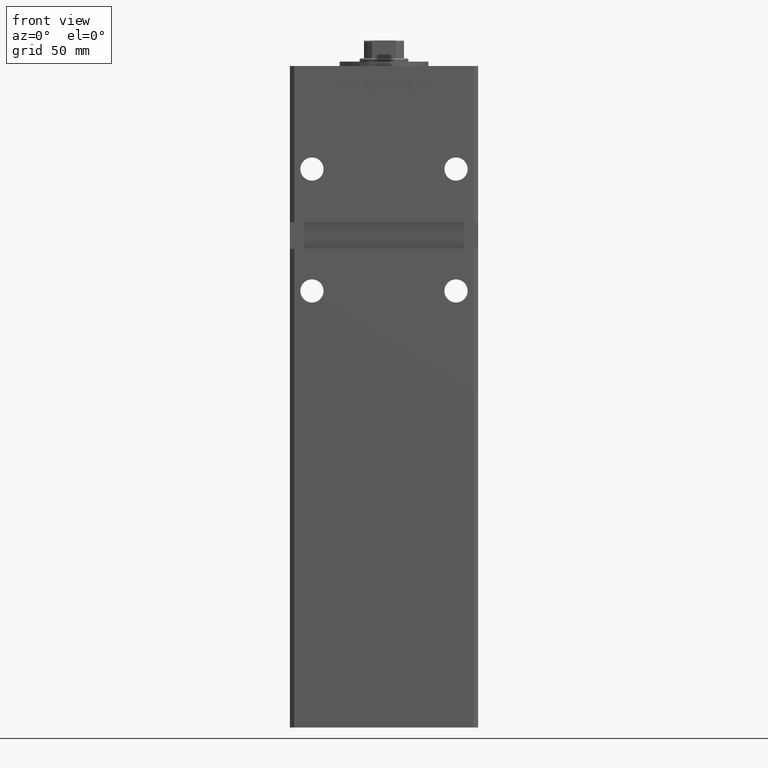
[diagram: clean part render]
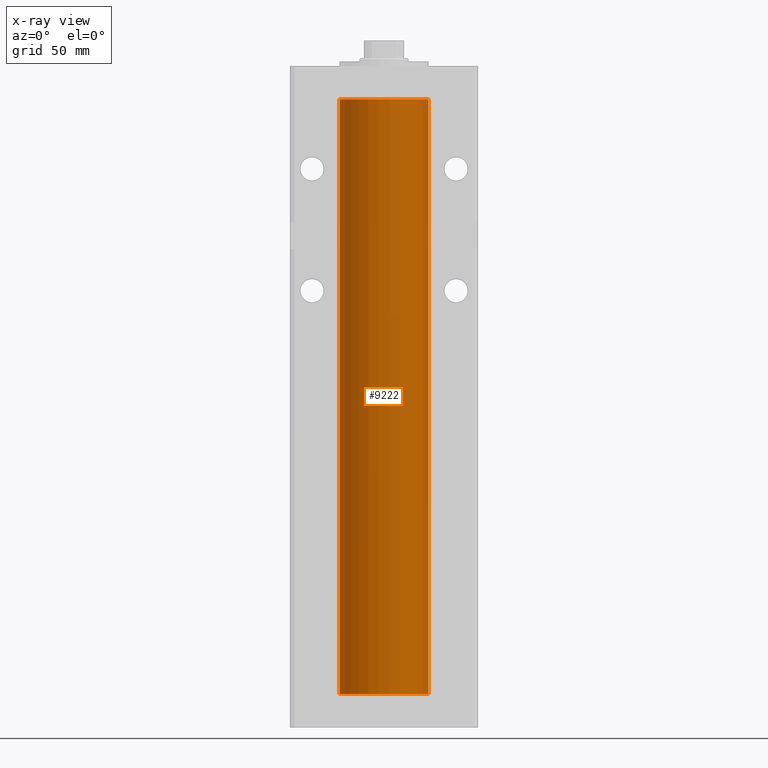
[diagram: x-ray — body ghosted, one internal face saturated and labeled with its STEP entity id]
A machine part, front view, then the same camera in x-ray: the body is ghosted and one INTERNAL B-rep face — a face not visible from any outside direction — is saturated and labeled: STEP entity #9222.
In plain terms, the highlighted cylindrical surface (partial cylindrical patch) has radius 20 mm, axis along (-0, -0, -1).
Its self-contained STEP definition (entity closure, byte-faithful):
#299 = ORIENTED_EDGE ( 'NONE', *, *, #31716, .T. ) ;
#1070 = VECTOR ( 'NONE', #48158, 1000.000000000000000 ) ;
#2253 = ORIENTED_EDGE ( 'NONE', *, *, #45475, .F. ) ;
#2367 = EDGE_CURVE ( 'NONE', #52980, #5954, #19341, .T. ) ;
#3259 = CARTESIAN_POINT ( 'NONE',  ( 20.00000000000000000, 2.449293598294706513E-15, 268.5000000000000000 ) ) ;
#5217 = DIRECTION ( 'NONE',  ( -0.000000000000000000, 0.000000000000000000, 1.000000000000000000 ) ) ;
#5954 = VERTEX_POINT ( 'NONE', #29439 ) ;
#7792 = CARTESIAN_POINT ( 'NONE',  ( 0.000000000000000000, 0.000000000000000000, 268.5000000000000000 ) ) ;
#9222 = ADVANCED_FACE ( 'NONE', ( #24996 ), #44625, .F. ) ;
#11039 = LINE ( 'NONE', #3259, #1070 ) ;
#11917 = CARTESIAN_POINT ( 'NONE',  ( -20.00000000000000000, 0.000000000000000000, 268.5000000000000000 ) ) ;
#12096 = CARTESIAN_POINT ( 'NONE',  ( 20.00000000000000000, 2.449293598294706513E-15, 268.5000000000000000 ) ) ;
#19341 = LINE ( 'NONE', #47314, #45217 ) ;
#22169 = DIRECTION ( 'NONE',  ( 1.000000000000000000, 0.000000000000000000, 0.000000000000000000 ) ) ;
#22480 = EDGE_CURVE ( 'NONE', #31709, #28141, #11039, .T. ) ;
#23423 = DIRECTION ( 'NONE',  ( -0.000000000000000000, 0.000000000000000000, 1.000000000000000000 ) ) ;
#24996 = FACE_OUTER_BOUND ( 'NONE', #42141, .T. ) ;
#25403 = CARTESIAN_POINT ( 'NONE',  ( 0.000000000000000000, 0.000000000000000000, 0.000000000000000000 ) ) ;
#28141 = VERTEX_POINT ( 'NONE', #51532 ) ;
#29439 = CARTESIAN_POINT ( 'NONE',  ( -20.00000000000000000, 0.000000000000000000, 0.000000000000000000 ) ) ;
#31709 = VERTEX_POINT ( 'NONE', #12096 ) ;
#31716 = EDGE_CURVE ( 'NONE', #52980, #31709, #44110, .T. ) ;
#34225 = AXIS2_PLACEMENT_3D ( 'NONE', #25403, #5217, #22169 ) ;
#34375 = DIRECTION ( 'NONE',  ( -1.000000000000000000, 0.000000000000000000, 0.000000000000000000 ) ) ;
#34395 = ORIENTED_EDGE ( 'NONE', *, *, #2367, .F. ) ;
#41014 = ORIENTED_EDGE ( 'NONE', *, *, #22480, .T. ) ;
#41529 = AXIS2_PLACEMENT_3D ( 'NONE', #48947, #23423, #48680 ) ;
#41906 = DIRECTION ( 'NONE',  ( -0.000000000000000000, -0.000000000000000000, -1.000000000000000000 ) ) ;
#42141 = EDGE_LOOP ( 'NONE', ( #299, #41014, #2253, #34395 ) ) ;
#44110 = CIRCLE ( 'NONE', #41529, 20.00000000000000000 ) ;
#44625 = CYLINDRICAL_SURFACE ( 'NONE', #45501, 20.00000000000000000 ) ;
#45217 = VECTOR ( 'NONE', #51881, 1000.000000000000000 ) ;
#45475 = EDGE_CURVE ( 'NONE', #5954, #28141, #53102, .T. ) ;
#45501 = AXIS2_PLACEMENT_3D ( 'NONE', #7792, #41906, #34375 ) ;
#47314 = CARTESIAN_POINT ( 'NONE',  ( -20.00000000000000000, 0.000000000000000000, 268.5000000000000000 ) ) ;
#48158 = DIRECTION ( 'NONE',  ( -0.000000000000000000, -0.000000000000000000, -1.000000000000000000 ) ) ;
#48680 = DIRECTION ( 'NONE',  ( 1.000000000000000000, 0.000000000000000000, 0.000000000000000000 ) ) ;
#48947 = CARTESIAN_POINT ( 'NONE',  ( 0.000000000000000000, 0.000000000000000000, 268.5000000000000000 ) ) ;
#51532 = CARTESIAN_POINT ( 'NONE',  ( 20.00000000000000000, 2.449293598294706513E-15, 0.000000000000000000 ) ) ;
#51881 = DIRECTION ( 'NONE',  ( -0.000000000000000000, -0.000000000000000000, -1.000000000000000000 ) ) ;
#52980 = VERTEX_POINT ( 'NONE', #11917 ) ;
#53102 = CIRCLE ( 'NONE', #34225, 20.00000000000000000 ) ;